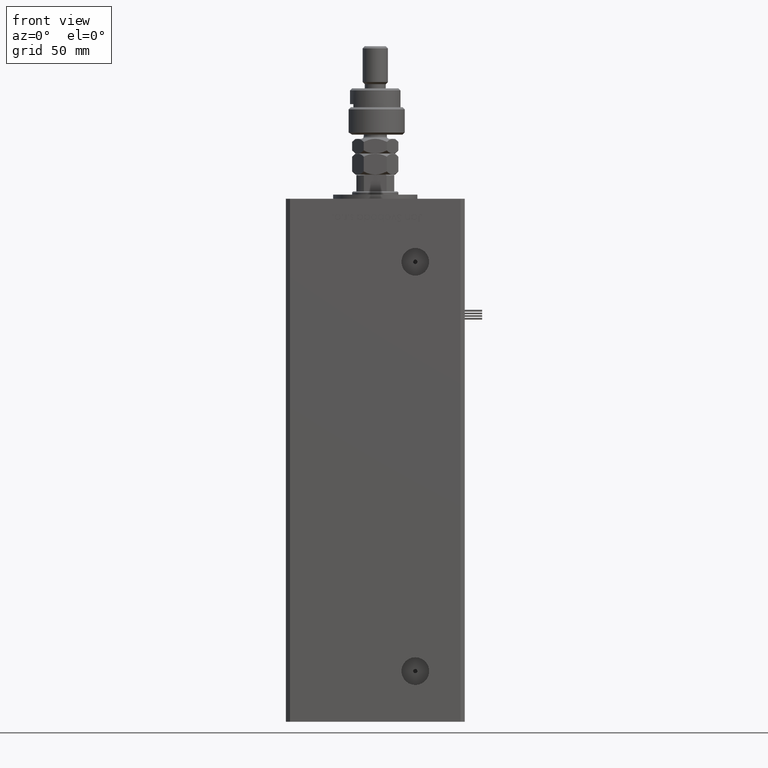
[diagram: clean part render]
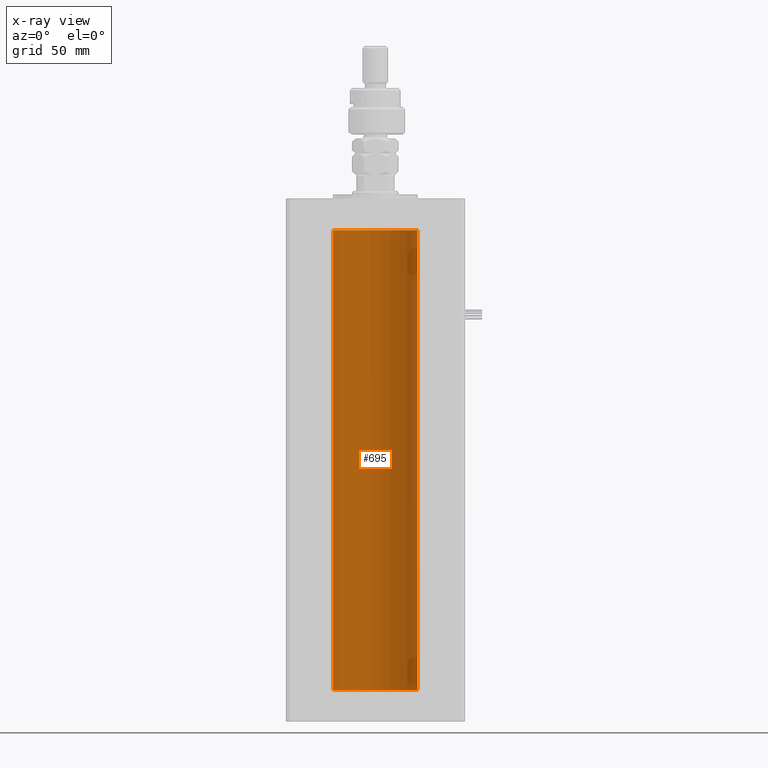
[diagram: x-ray — body ghosted, one internal face saturated and labeled with its STEP entity id]
A machine part, front view, then the same camera in x-ray: the body is ghosted and one INTERNAL B-rep face — a face not visible from any outside direction — is saturated and labeled: STEP entity #695.
In plain terms, the highlighted cylindrical surface (partial cylindrical patch) has radius 20 mm, axis along (-0, -0, -1).
Its self-contained STEP definition (entity closure, byte-faithful):
#695 = ADVANCED_FACE ( 'NONE', ( #31848 ), #53849, .F. ) ;
#1513 = ORIENTED_EDGE ( 'NONE', *, *, #55909, .F. ) ;
#2244 = CARTESIAN_POINT ( 'NONE',  ( -20.00000000000000000, 0.000000000000000000, 218.5000000000000000 ) ) ;
#3861 = VERTEX_POINT ( 'NONE', #55962 ) ;
#5414 = CARTESIAN_POINT ( 'NONE',  ( 20.00000000000000000, 2.449293598294706513E-15, 0.000000000000000000 ) ) ;
#6588 = CARTESIAN_POINT ( 'NONE',  ( 20.00000000000000000, 2.449293598294706513E-15, 218.5000000000000000 ) ) ;
#10442 = EDGE_CURVE ( 'NONE', #20987, #49595, #15852, .T. ) ;
#11090 = CIRCLE ( 'NONE', #18554, 20.00000000000000000 ) ;
#14093 = VERTEX_POINT ( 'NONE', #57234 ) ;
#15852 = LINE ( 'NONE', #42822, #44699 ) ;
#18204 = AXIS2_PLACEMENT_3D ( 'NONE', #57678, #40068, #21896 ) ;
#18554 = AXIS2_PLACEMENT_3D ( 'NONE', #52115, #38615, #56787 ) ;
#20130 = DIRECTION ( 'NONE',  ( -0.000000000000000000, -0.000000000000000000, -1.000000000000000000 ) ) ;
#20828 = DIRECTION ( 'NONE',  ( -0.000000000000000000, -0.000000000000000000, -1.000000000000000000 ) ) ;
#20987 = VERTEX_POINT ( 'NONE', #6588 ) ;
#21896 = DIRECTION ( 'NONE',  ( -1.000000000000000000, 0.000000000000000000, 0.000000000000000000 ) ) ;
#28067 = EDGE_CURVE ( 'NONE', #14093, #3861, #42426, .T. ) ;
#31848 = FACE_OUTER_BOUND ( 'NONE', #57270, .T. ) ;
#32387 = CIRCLE ( 'NONE', #53021, 20.00000000000000000 ) ;
#34177 = ORIENTED_EDGE ( 'NONE', *, *, #28067, .T. ) ;
#36274 = ORIENTED_EDGE ( 'NONE', *, *, #10442, .F. ) ;
#38615 = DIRECTION ( 'NONE',  ( -0.000000000000000000, 0.000000000000000000, 1.000000000000000000 ) ) ;
#40068 = DIRECTION ( 'NONE',  ( -0.000000000000000000, -0.000000000000000000, -1.000000000000000000 ) ) ;
#42426 = LINE ( 'NONE', #2244, #44121 ) ;
#42822 = CARTESIAN_POINT ( 'NONE',  ( 20.00000000000000000, 2.449293598294706513E-15, 218.5000000000000000 ) ) ;
#43804 = EDGE_CURVE ( 'NONE', #20987, #14093, #32387, .T. ) ;
#44121 = VECTOR ( 'NONE', #20130, 1000.000000000000000 ) ;
#44699 = VECTOR ( 'NONE', #20828, 1000.000000000000000 ) ;
#48323 = CARTESIAN_POINT ( 'NONE',  ( 0.000000000000000000, 0.000000000000000000, 218.5000000000000000 ) ) ;
#49595 = VERTEX_POINT ( 'NONE', #5414 ) ;
#52115 = CARTESIAN_POINT ( 'NONE',  ( 0.000000000000000000, 0.000000000000000000, 0.000000000000000000 ) ) ;
#52163 = DIRECTION ( 'NONE',  ( -0.000000000000000000, 0.000000000000000000, 1.000000000000000000 ) ) ;
#53021 = AXIS2_PLACEMENT_3D ( 'NONE', #48323, #52163, #53297 ) ;
#53297 = DIRECTION ( 'NONE',  ( 1.000000000000000000, 0.000000000000000000, 0.000000000000000000 ) ) ;
#53849 = CYLINDRICAL_SURFACE ( 'NONE', #18204, 20.00000000000000000 ) ;
#53883 = ORIENTED_EDGE ( 'NONE', *, *, #43804, .T. ) ;
#55909 = EDGE_CURVE ( 'NONE', #49595, #3861, #11090, .T. ) ;
#55962 = CARTESIAN_POINT ( 'NONE',  ( -20.00000000000000000, 0.000000000000000000, 0.000000000000000000 ) ) ;
#56787 = DIRECTION ( 'NONE',  ( 1.000000000000000000, 0.000000000000000000, 0.000000000000000000 ) ) ;
#57234 = CARTESIAN_POINT ( 'NONE',  ( -20.00000000000000000, 0.000000000000000000, 218.5000000000000000 ) ) ;
#57270 = EDGE_LOOP ( 'NONE', ( #36274, #53883, #34177, #1513 ) ) ;
#57678 = CARTESIAN_POINT ( 'NONE',  ( 0.000000000000000000, 0.000000000000000000, 218.5000000000000000 ) ) ;